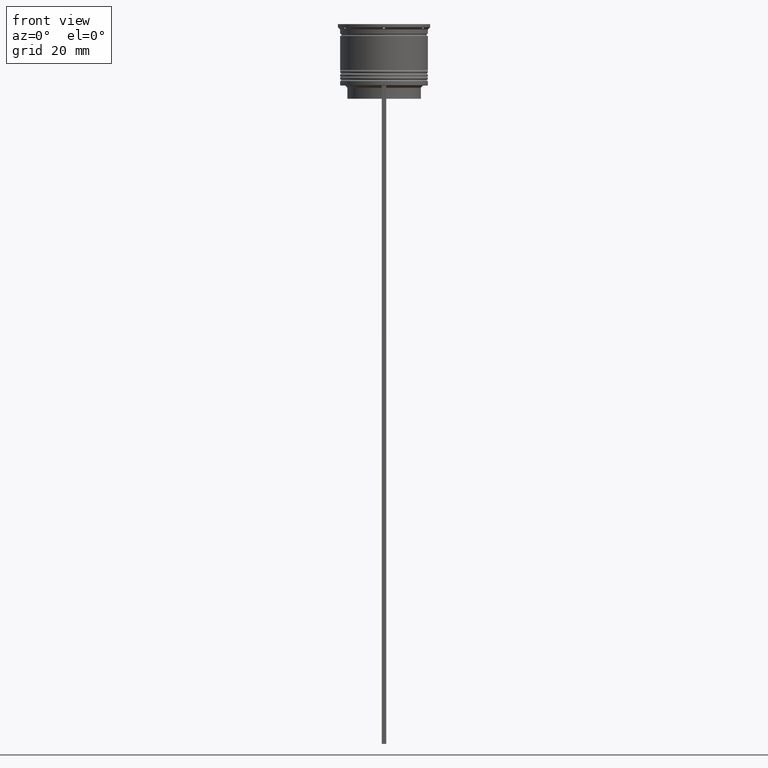
[diagram: clean part render]
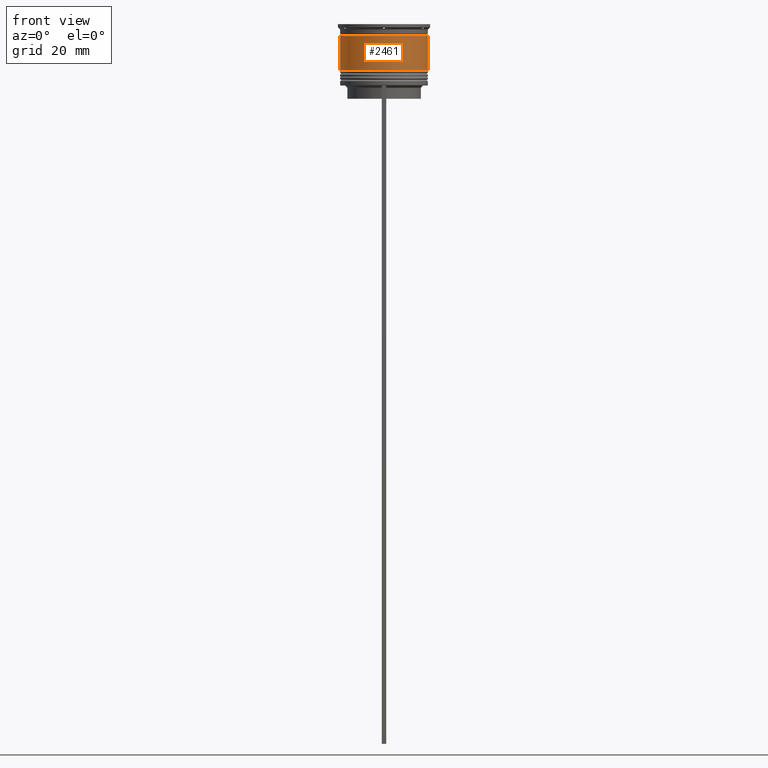
[diagram: same view with one face highlighted and labeled with its STEP entity id]
A machine part, front view. The second image highlights one B-rep face of the part: STEP entity #2461.
In plain terms, the highlighted cylindrical surface (partial cylindrical patch) has radius 10 mm, axis along (-0, -0, 1).
Its self-contained STEP definition (entity closure, byte-faithful):
#86 = AXIS2_PLACEMENT_3D ( 'NONE', #1602, #2417, #1530 ) ;
#131 = EDGE_CURVE ( 'NONE', #1481, #1210, #356, .T. ) ;
#221 = CYLINDRICAL_SURFACE ( 'NONE', #86, 10.00000000000000000 ) ;
#253 = DIRECTION ( 'NONE',  ( -0.000000000000000000, -0.000000000000000000, 1.000000000000000000 ) ) ;
#297 = VERTEX_POINT ( 'NONE', #832 ) ;
#356 = CIRCLE ( 'NONE', #1015, 9.999999999999998224 ) ;
#398 = ORIENTED_EDGE ( 'NONE', *, *, #1059, .T. ) ;
#445 = FACE_OUTER_BOUND ( 'NONE', #1487, .T. ) ;
#645 = AXIS2_PLACEMENT_3D ( 'NONE', #1238, #253, #837 ) ;
#673 = VERTEX_POINT ( 'NONE', #1636 ) ;
#759 = CARTESIAN_POINT ( 'NONE',  ( -9.999999999999998224, 1.224646799147353256E-15, -2.700000000000001954 ) ) ;
#821 = ORIENTED_EDGE ( 'NONE', *, *, #2068, .F. ) ;
#832 = CARTESIAN_POINT ( 'NONE',  ( 10.00000000000000178, 0.000000000000000000, -10.50000000000000000 ) ) ;
#837 = DIRECTION ( 'NONE',  ( 1.000000000000000000, 0.000000000000000000, 0.000000000000000000 ) ) ;
#924 = DIRECTION ( 'NONE',  ( 1.000000000000000000, 0.000000000000000000, 0.000000000000000000 ) ) ;
#1001 = DIRECTION ( 'NONE',  ( -0.000000000000000000, -0.000000000000000000, 1.000000000000000000 ) ) ;
#1015 = AXIS2_PLACEMENT_3D ( 'NONE', #2154, #1364, #924 ) ;
#1034 = VECTOR ( 'NONE', #1342, 1000.000000000000000 ) ;
#1059 = EDGE_CURVE ( 'NONE', #673, #297, #1764, .T. ) ;
#1210 = VERTEX_POINT ( 'NONE', #1881 ) ;
#1238 = CARTESIAN_POINT ( 'NONE',  ( 0.000000000000000000, 0.000000000000000000, -10.50000000000000000 ) ) ;
#1271 = LINE ( 'NONE', #1469, #1034 ) ;
#1342 = DIRECTION ( 'NONE',  ( -0.000000000000000000, -0.000000000000000000, 1.000000000000000000 ) ) ;
#1364 = DIRECTION ( 'NONE',  ( -0.000000000000000000, -0.000000000000000000, 1.000000000000000000 ) ) ;
#1379 = CARTESIAN_POINT ( 'NONE',  ( 10.00000000000000000, 0.000000000000000000, 0.000000000000000000 ) ) ;
#1417 = ORIENTED_EDGE ( 'NONE', *, *, #131, .F. ) ;
#1469 = CARTESIAN_POINT ( 'NONE',  ( -10.00000000000000000, 1.224646799147353256E-15, 0.000000000000000000 ) ) ;
#1481 = VERTEX_POINT ( 'NONE', #759 ) ;
#1487 = EDGE_LOOP ( 'NONE', ( #821, #398, #1671, #1417 ) ) ;
#1530 = DIRECTION ( 'NONE',  ( 1.000000000000000000, 0.000000000000000000, 0.000000000000000000 ) ) ;
#1602 = CARTESIAN_POINT ( 'NONE',  ( 0.000000000000000000, 0.000000000000000000, 0.000000000000000000 ) ) ;
#1636 = CARTESIAN_POINT ( 'NONE',  ( -10.00000000000000178, 1.224646799147353454E-15, -10.50000000000000000 ) ) ;
#1671 = ORIENTED_EDGE ( 'NONE', *, *, #2225, .T. ) ;
#1764 = CIRCLE ( 'NONE', #645, 10.00000000000000178 ) ;
#1881 = CARTESIAN_POINT ( 'NONE',  ( 9.999999999999998224, 0.000000000000000000, -2.700000000000001954 ) ) ;
#1908 = VECTOR ( 'NONE', #1001, 1000.000000000000000 ) ;
#2068 = EDGE_CURVE ( 'NONE', #673, #1481, #1271, .T. ) ;
#2154 = CARTESIAN_POINT ( 'NONE',  ( 0.000000000000000000, 0.000000000000000000, -2.700000000000001954 ) ) ;
#2212 = LINE ( 'NONE', #1379, #1908 ) ;
#2225 = EDGE_CURVE ( 'NONE', #297, #1210, #2212, .T. ) ;
#2417 = DIRECTION ( 'NONE',  ( -0.000000000000000000, -0.000000000000000000, 1.000000000000000000 ) ) ;
#2461 = ADVANCED_FACE ( 'NONE', ( #445 ), #221, .T. ) ;